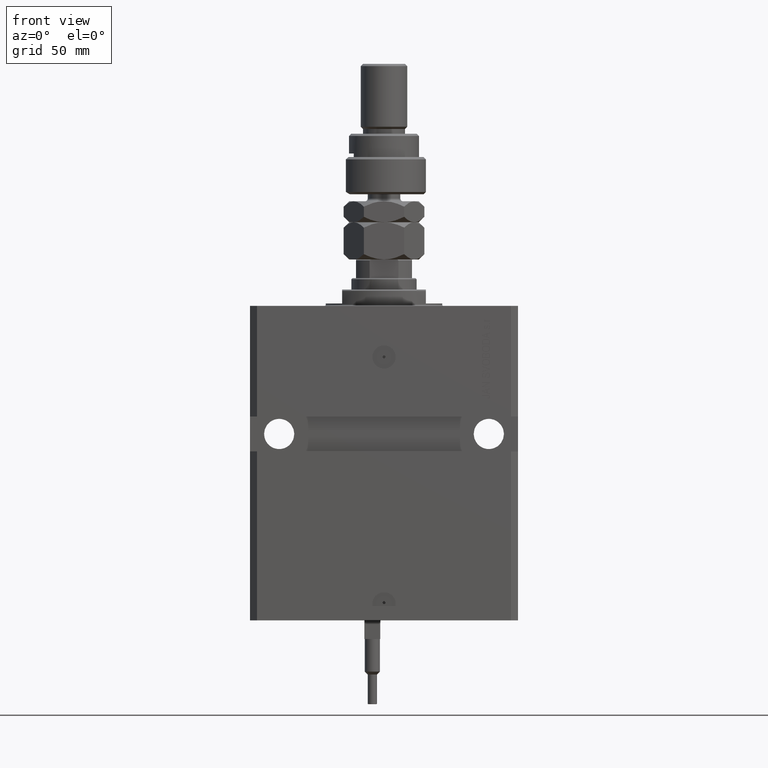
[diagram: clean part render]
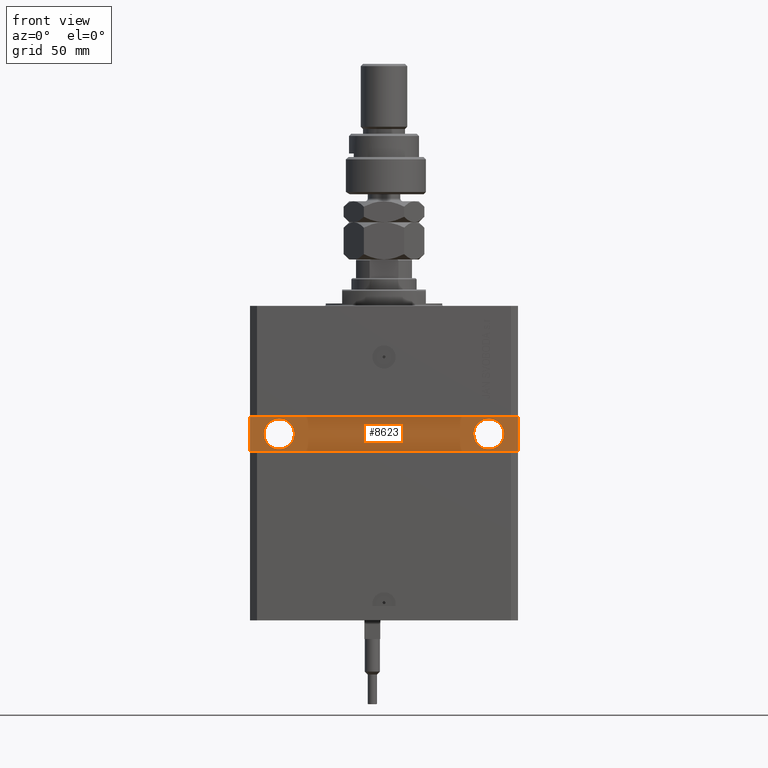
[diagram: same view with one face highlighted and labeled with its STEP entity id]
A machine part, front view. The second image highlights one B-rep face of the part: STEP entity #8623.
In plain terms, the highlighted planar face has unit normal (0, -1, 0).
Its self-contained STEP definition (entity closure, byte-faithful):
#320 = FACE_OUTER_BOUND ( 'NONE', #46365, .T. ) ;
#594 = CARTESIAN_POINT ( 'NONE',  ( -44.99999999999998579, -40.00000000000000000, -55.00000000000001421 ) ) ;
#746 = EDGE_CURVE ( 'NONE', #24881, #32920, #31782, .T. ) ;
#1022 = CARTESIAN_POINT ( 'NONE',  ( 57.50000000000000711, -39.99999999999998579, -62.49999999999999289 ) ) ;
#1913 = DIRECTION ( 'NONE',  ( 1.000000000000000000, 0.000000000000000000, 0.000000000000000000 ) ) ;
#3678 = CARTESIAN_POINT ( 'NONE',  ( 45.00000000000001421, -39.99999999999999289, -55.00000000000000000 ) ) ;
#6961 = VECTOR ( 'NONE', #24197, 1000.000000000000000 ) ;
#7205 = FACE_BOUND ( 'NONE', #38949, .T. ) ;
#7421 = EDGE_CURVE ( 'NONE', #52086, #14526, #20764, .T. ) ;
#7727 = DIRECTION ( 'NONE',  ( 1.000000000000000000, 1.206764157201257045E-16, 0.000000000000000000 ) ) ;
#8623 = ADVANCED_FACE ( 'NONE', ( #43455, #7205, #320 ), #33126, .T. ) ;
#8819 = CARTESIAN_POINT ( 'NONE',  ( -57.50000000000000711, -40.00000000000000000, -62.50000000000000000 ) ) ;
#9964 = EDGE_CURVE ( 'NONE', #38008, #40820, #10812, .T. ) ;
#10358 = DIRECTION ( 'NONE',  ( 7.680174481697266334E-17, -1.000000000000000000, 1.232595164407830946E-32 ) ) ;
#10812 = CIRCLE ( 'NONE', #43805, 6.499999999999999112 ) ;
#11485 = ORIENTED_EDGE ( 'NONE', *, *, #38590, .F. ) ;
#11985 = ORIENTED_EDGE ( 'NONE', *, *, #14882, .T. ) ;
#12361 = CARTESIAN_POINT ( 'NONE',  ( 57.50000000000000711, -39.99999999999998579, -62.49999999999999289 ) ) ;
#13016 = DIRECTION ( 'NONE',  ( 1.101411730780568590E-16, -1.000000000000000000, 0.000000000000000000 ) ) ;
#14402 = ORIENTED_EDGE ( 'NONE', *, *, #44786, .F. ) ;
#14526 = VERTEX_POINT ( 'NONE', #1022 ) ;
#14882 = EDGE_CURVE ( 'NONE', #26387, #34135, #27109, .T. ) ;
#16181 = CARTESIAN_POINT ( 'NONE',  ( -51.49999999999998579, -40.00000000000000000, -55.00000000000001421 ) ) ;
#18345 = ORIENTED_EDGE ( 'NONE', *, *, #43196, .T. ) ;
#19901 = DIRECTION ( 'NONE',  ( 0.000000000000000000, 0.000000000000000000, -1.000000000000000000 ) ) ;
#20764 = LINE ( 'NONE', #8819, #48778 ) ;
#21048 = EDGE_LOOP ( 'NONE', ( #11485, #26288 ) ) ;
#21523 = EDGE_CURVE ( 'NONE', #34135, #52086, #43954, .T. ) ;
#22615 = ORIENTED_EDGE ( 'NONE', *, *, #7421, .T. ) ;
#23518 = AXIS2_PLACEMENT_3D ( 'NONE', #32873, #24675, #7727 ) ;
#24197 = DIRECTION ( 'NONE',  ( -1.000000000000000000, -1.206764157201257045E-16, -1.810146235801885814E-16 ) ) ;
#24309 = DIRECTION ( 'NONE',  ( 0.000000000000000000, 0.000000000000000000, 1.000000000000000000 ) ) ;
#24558 = LINE ( 'NONE', #12361, #31467 ) ;
#24582 = DIRECTION ( 'NONE',  ( 1.000000000000000000, 0.000000000000000000, 0.000000000000000000 ) ) ;
#24675 = DIRECTION ( 'NONE',  ( 1.206764157201257045E-16, -1.000000000000000000, 0.000000000000000000 ) ) ;
#24881 = VERTEX_POINT ( 'NONE', #51613 ) ;
#25512 = CARTESIAN_POINT ( 'NONE',  ( -57.50000000000000711, -40.00000000000000000, -62.50000000000000000 ) ) ;
#26288 = ORIENTED_EDGE ( 'NONE', *, *, #746, .F. ) ;
#26387 = VERTEX_POINT ( 'NONE', #33819 ) ;
#27109 = LINE ( 'NONE', #28163, #6961 ) ;
#27926 = DIRECTION ( 'NONE',  ( 1.000000000000000000, 1.206764157201257045E-16, 6.033820786006285224E-17 ) ) ;
#28163 = CARTESIAN_POINT ( 'NONE',  ( 57.50000000000000711, -39.99999999999998579, -47.49999999999998579 ) ) ;
#29032 = CARTESIAN_POINT ( 'NONE',  ( -57.50000000000000711, -40.00000000000000000, -47.50000000000000711 ) ) ;
#29678 = DIRECTION ( 'NONE',  ( 1.000000000000000000, 0.000000000000000000, 0.000000000000000000 ) ) ;
#31467 = VECTOR ( 'NONE', #24309, 1000.000000000000000 ) ;
#31782 = CIRCLE ( 'NONE', #51995, 6.499999999999999112 ) ;
#32014 = DIRECTION ( 'NONE',  ( 7.680174481697266334E-17, -1.000000000000000000, 1.232595164407830946E-32 ) ) ;
#32873 = CARTESIAN_POINT ( 'NONE',  ( 4.842396851142260860E-15, -39.99999999999999289, 0.000000000000000000 ) ) ;
#32920 = VERTEX_POINT ( 'NONE', #44868 ) ;
#33126 = PLANE ( 'NONE',  #23518 ) ;
#33349 = VECTOR ( 'NONE', #19901, 1000.000000000000000 ) ;
#33819 = CARTESIAN_POINT ( 'NONE',  ( 57.50000000000000711, -39.99999999999998579, -47.49999999999998579 ) ) ;
#34135 = VERTEX_POINT ( 'NONE', #29032 ) ;
#34200 = CARTESIAN_POINT ( 'NONE',  ( 45.00000000000001421, -39.99999999999999289, -55.00000000000000000 ) ) ;
#35547 = ORIENTED_EDGE ( 'NONE', *, *, #21523, .T. ) ;
#35699 = AXIS2_PLACEMENT_3D ( 'NONE', #50064, #46092, #1913 ) ;
#38008 = VERTEX_POINT ( 'NONE', #41995 ) ;
#38590 = EDGE_CURVE ( 'NONE', #32920, #24881, #41395, .T. ) ;
#38949 = EDGE_LOOP ( 'NONE', ( #49037, #14402 ) ) ;
#40820 = VERTEX_POINT ( 'NONE', #16181 ) ;
#41395 = CIRCLE ( 'NONE', #48157, 6.499999999999999112 ) ;
#41995 = CARTESIAN_POINT ( 'NONE',  ( -38.49999999999998579, -40.00000000000000000, -55.00000000000001421 ) ) ;
#43196 = EDGE_CURVE ( 'NONE', #14526, #26387, #24558, .T. ) ;
#43455 = FACE_BOUND ( 'NONE', #21048, .T. ) ;
#43695 = CARTESIAN_POINT ( 'NONE',  ( -57.50000000000000711, -40.00000000000000000, -47.50000000000000711 ) ) ;
#43805 = AXIS2_PLACEMENT_3D ( 'NONE', #594, #13016, #29678 ) ;
#43954 = LINE ( 'NONE', #43695, #33349 ) ;
#44786 = EDGE_CURVE ( 'NONE', #40820, #38008, #45009, .T. ) ;
#44868 = CARTESIAN_POINT ( 'NONE',  ( 51.50000000000001421, -39.99999999999999289, -55.00000000000000000 ) ) ;
#45009 = CIRCLE ( 'NONE', #35699, 6.499999999999999112 ) ;
#46082 = DIRECTION ( 'NONE',  ( 1.000000000000000000, 0.000000000000000000, 0.000000000000000000 ) ) ;
#46092 = DIRECTION ( 'NONE',  ( 1.101411730780568590E-16, -1.000000000000000000, 0.000000000000000000 ) ) ;
#46365 = EDGE_LOOP ( 'NONE', ( #22615, #18345, #11985, #35547 ) ) ;
#48157 = AXIS2_PLACEMENT_3D ( 'NONE', #34200, #10358, #46082 ) ;
#48778 = VECTOR ( 'NONE', #27926, 1000.000000000000000 ) ;
#49037 = ORIENTED_EDGE ( 'NONE', *, *, #9964, .F. ) ;
#50064 = CARTESIAN_POINT ( 'NONE',  ( -44.99999999999998579, -40.00000000000000000, -55.00000000000001421 ) ) ;
#51613 = CARTESIAN_POINT ( 'NONE',  ( 38.50000000000001421, -39.99999999999999289, -55.00000000000000000 ) ) ;
#51995 = AXIS2_PLACEMENT_3D ( 'NONE', #3678, #32014, #24582 ) ;
#52086 = VERTEX_POINT ( 'NONE', #25512 ) ;